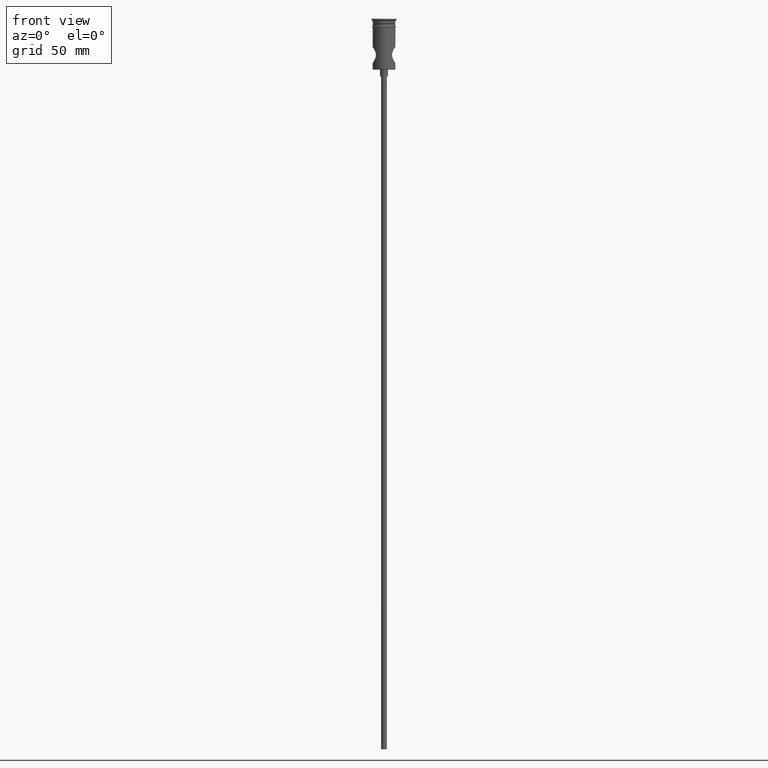
[diagram: clean part render]
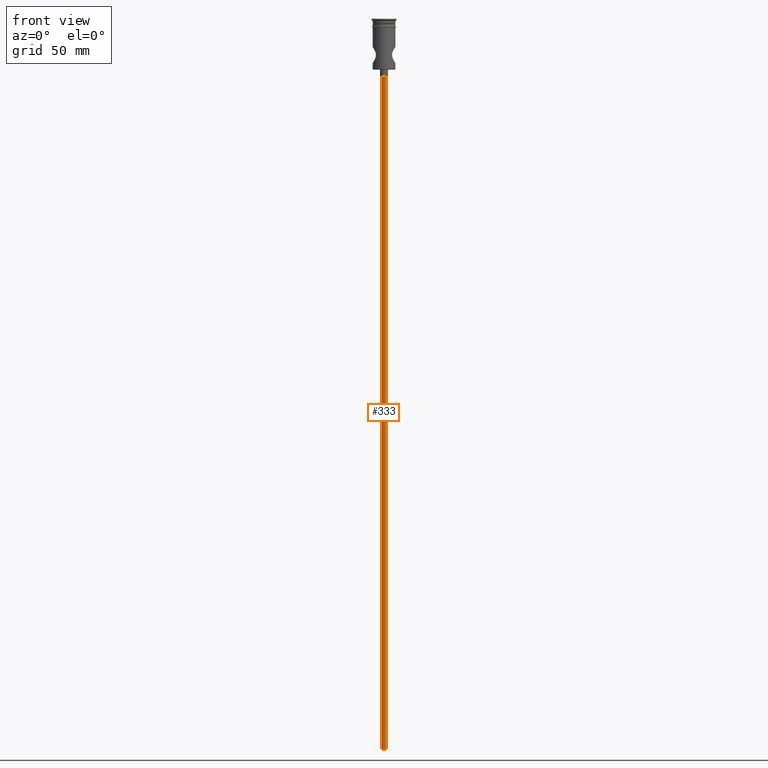
[diagram: same view with one face highlighted and labeled with its STEP entity id]
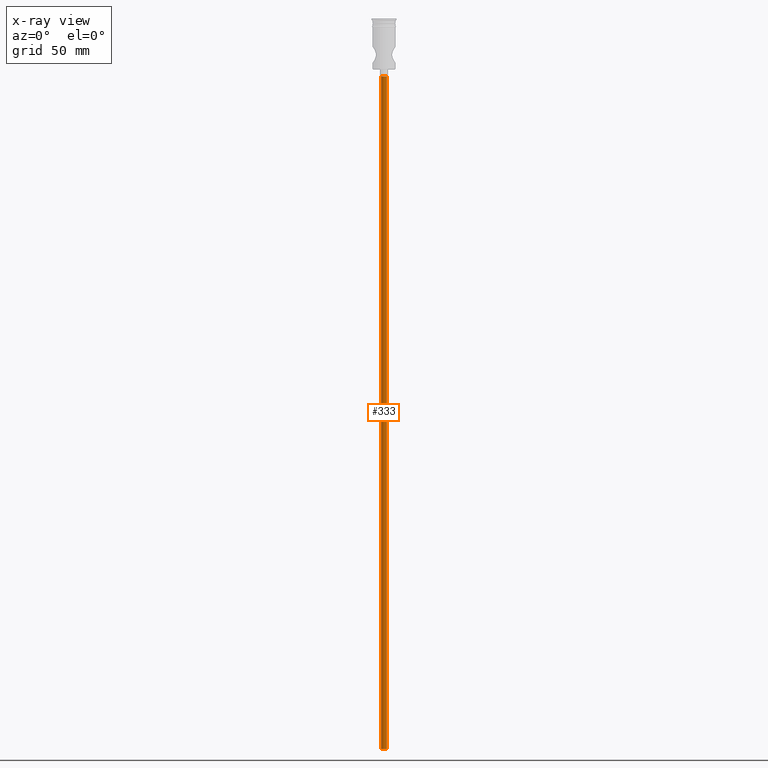
[diagram: x-ray of the same camera — body ghosted, the highlighted face saturated]
A machine part, front view. The second image highlights one B-rep face of the part: STEP entity #333.
The next image is the same camera in x-ray: the body ghosted, the highlighted face saturated — about 0% of this face is hidden behind the body in this view.
In plain terms, the highlighted cylindrical surface (edge-blend (fillet) strip) has radius 1.25 mm, axis along (-0, -0, 1).
Its self-contained STEP definition (entity closure, byte-faithful):
#109 = CIRCLE ( 'NONE', #1220, 1.250000000000000000 ) ;
#116 = CARTESIAN_POINT ( 'NONE',  ( -1.250000000000000000, 1.530808498934191571E-16, -322.5000000000000000 ) ) ;
#138 = CARTESIAN_POINT ( 'NONE',  ( 0.000000000000000000, 0.000000000000000000, -322.5000000000000000 ) ) ;
#235 = CARTESIAN_POINT ( 'NONE',  ( 0.000000000000000000, 0.000000000000000000, -25.50000000000000000 ) ) ;
#258 = DIRECTION ( 'NONE',  ( -1.000000000000000000, 0.000000000000000000, 0.000000000000000000 ) ) ;
#297 = LINE ( 'NONE', #727, #632 ) ;
#323 = ORIENTED_EDGE ( 'NONE', *, *, #566, .T. ) ;
#333 = ADVANCED_FACE ( 'NONE', ( #640 ), #1077, .T. ) ;
#341 = EDGE_CURVE ( 'NONE', #1112, #1076, #1102, .T. ) ;
#427 = DIRECTION ( 'NONE',  ( -0.000000000000000000, -0.000000000000000000, 1.000000000000000000 ) ) ;
#431 = CARTESIAN_POINT ( 'NONE',  ( -1.250000000000000000, 1.530808498934191571E-16, -322.5000000000000000 ) ) ;
#433 = DIRECTION ( 'NONE',  ( 1.000000000000000000, 0.000000000000000000, 0.000000000000000000 ) ) ;
#458 = EDGE_CURVE ( 'NONE', #748, #1112, #109, .T. ) ;
#566 = EDGE_CURVE ( 'NONE', #1339, #1076, #720, .T. ) ;
#632 = VECTOR ( 'NONE', #863, 1000.000000000000000 ) ;
#640 = FACE_OUTER_BOUND ( 'NONE', #1349, .T. ) ;
#720 = CIRCLE ( 'NONE', #879, 1.250000000000000000 ) ;
#727 = CARTESIAN_POINT ( 'NONE',  ( 1.250000000000000000, 0.000000000000000000, -322.5000000000000000 ) ) ;
#748 = VERTEX_POINT ( 'NONE', #1416 ) ;
#781 = DIRECTION ( 'NONE',  ( -1.000000000000000000, 0.000000000000000000, 0.000000000000000000 ) ) ;
#863 = DIRECTION ( 'NONE',  ( -0.000000000000000000, -0.000000000000000000, 1.000000000000000000 ) ) ;
#873 = CARTESIAN_POINT ( 'NONE',  ( 0.000000000000000000, 0.000000000000000000, -322.5000000000000000 ) ) ;
#879 = AXIS2_PLACEMENT_3D ( 'NONE', #235, #1365, #781 ) ;
#945 = VECTOR ( 'NONE', #427, 1000.000000000000000 ) ;
#957 = DIRECTION ( 'NONE',  ( -0.000000000000000000, -0.000000000000000000, 1.000000000000000000 ) ) ;
#1026 = CARTESIAN_POINT ( 'NONE',  ( -1.250000000000000000, 1.530808498934191571E-16, -25.50000000000000000 ) ) ;
#1042 = AXIS2_PLACEMENT_3D ( 'NONE', #873, #957, #433 ) ;
#1076 = VERTEX_POINT ( 'NONE', #1026 ) ;
#1077 = CYLINDRICAL_SURFACE ( 'NONE', #1042, 1.250000000000000000 ) ;
#1102 = LINE ( 'NONE', #116, #945 ) ;
#1112 = VERTEX_POINT ( 'NONE', #431 ) ;
#1176 = EDGE_CURVE ( 'NONE', #748, #1339, #297, .T. ) ;
#1179 = ORIENTED_EDGE ( 'NONE', *, *, #341, .F. ) ;
#1190 = ORIENTED_EDGE ( 'NONE', *, *, #458, .F. ) ;
#1220 = AXIS2_PLACEMENT_3D ( 'NONE', #138, #1253, #258 ) ;
#1253 = DIRECTION ( 'NONE',  ( 0.000000000000000000, 0.000000000000000000, -1.000000000000000000 ) ) ;
#1281 = CARTESIAN_POINT ( 'NONE',  ( 1.250000000000000000, 0.000000000000000000, -25.50000000000000000 ) ) ;
#1339 = VERTEX_POINT ( 'NONE', #1281 ) ;
#1349 = EDGE_LOOP ( 'NONE', ( #1179, #1190, #1369, #323 ) ) ;
#1365 = DIRECTION ( 'NONE',  ( 0.000000000000000000, 0.000000000000000000, -1.000000000000000000 ) ) ;
#1369 = ORIENTED_EDGE ( 'NONE', *, *, #1176, .T. ) ;
#1416 = CARTESIAN_POINT ( 'NONE',  ( 1.250000000000000000, 0.000000000000000000, -322.5000000000000000 ) ) ;